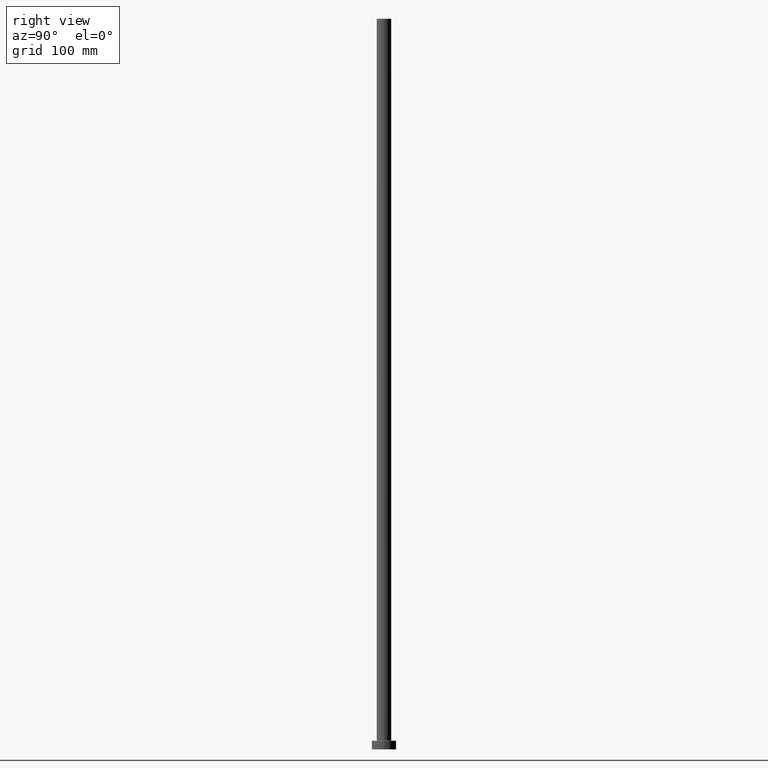
[diagram: clean part render]
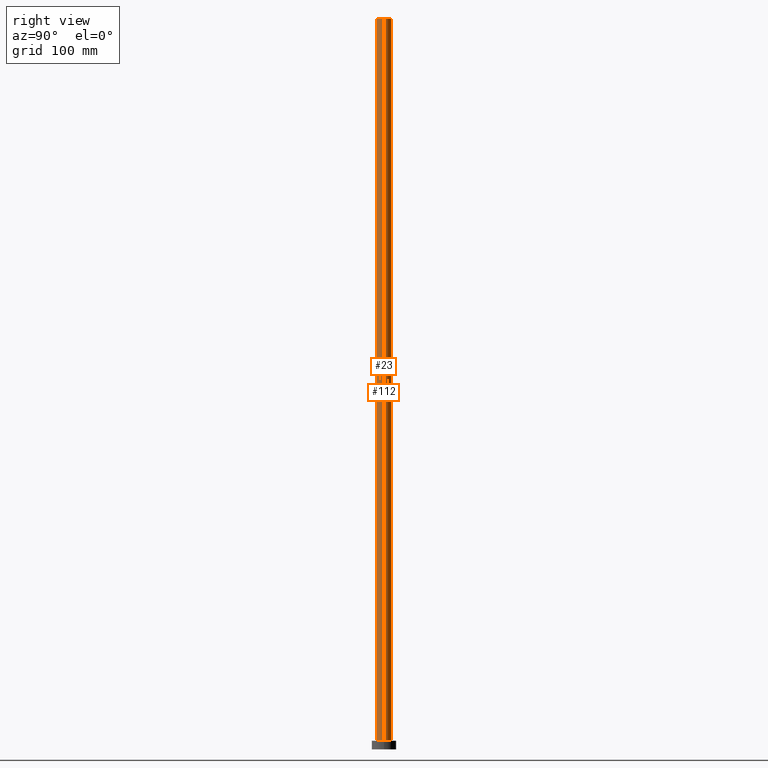
[diagram: same view with one multi-face feature highlighted, each face labeled with its STEP entity id]
A machine part, right view. The highlighted faces form ONE feature: a constant-radius fillet chain: 2 tangent blend faces with common blend radius 6 mm. The faces share edges in the B-rep.
Their STEP definitions:
[1] entity #112 (Cylinder):
#2 = VERTEX_POINT ( 'NONE', #265 ) ;
#47 = VECTOR ( 'NONE', #137, 1000.000000000000000 ) ;
#56 = ORIENTED_EDGE ( 'NONE', *, *, #376, .T. ) ;
#64 = AXIS2_PLACEMENT_3D ( 'NONE', #256, #151, #220 ) ;
#67 = DIRECTION ( 'NONE',  ( -1.000000000000000000, 0.000000000000000000, 0.000000000000000000 ) ) ;
#71 = CARTESIAN_POINT ( 'NONE',  ( 0.000000000000000000, 0.000000000000000000, 600.0000000000000000 ) ) ;
#112 = ADVANCED_FACE ( 'NONE', ( #239 ), #348, .T. ) ;
#114 = CARTESIAN_POINT ( 'NONE',  ( 6.000000000000000888, 7.347880794884120722E-16, 7.499999999999951150 ) ) ;
#137 = DIRECTION ( 'NONE',  ( -0.000000000000000000, -0.000000000000000000, -1.000000000000000000 ) ) ;
#151 = DIRECTION ( 'NONE',  ( 0.000000000000000000, 0.000000000000000000, 1.000000000000000000 ) ) ;
#154 = LINE ( 'NONE', #327, #434 ) ;
#181 = ORIENTED_EDGE ( 'NONE', *, *, #205, .F. ) ;
#184 = CARTESIAN_POINT ( 'NONE',  ( -6.000000000000000888, 0.000000000000000000, 600.0000000000000000 ) ) ;
#192 = EDGE_LOOP ( 'NONE', ( #284, #56, #371, #181 ) ) ;
#205 = EDGE_CURVE ( 'NONE', #364, #2, #451, .T. ) ;
#215 = DIRECTION ( 'NONE',  ( -0.000000000000000000, -0.000000000000000000, -1.000000000000000000 ) ) ;
#218 = VERTEX_POINT ( 'NONE', #114 ) ;
#220 = DIRECTION ( 'NONE',  ( 1.000000000000000000, 0.000000000000000000, 0.000000000000000000 ) ) ;
#239 = FACE_OUTER_BOUND ( 'NONE', #192, .T. ) ;
#252 = DIRECTION ( 'NONE',  ( 0.000000000000000000, 0.000000000000000000, 1.000000000000000000 ) ) ;
#255 = VERTEX_POINT ( 'NONE', #331 ) ;
#256 = CARTESIAN_POINT ( 'NONE',  ( 0.000000000000000000, 0.000000000000000000, 7.499999999999951150 ) ) ;
#262 = EDGE_CURVE ( 'NONE', #255, #364, #372, .T. ) ;
#265 = CARTESIAN_POINT ( 'NONE',  ( -6.000000000000000888, 0.000000000000000000, 7.499999999999951150 ) ) ;
#267 = CIRCLE ( 'NONE', #64, 6.000000000000000888 ) ;
#284 = ORIENTED_EDGE ( 'NONE', *, *, #262, .F. ) ;
#327 = CARTESIAN_POINT ( 'NONE',  ( 6.000000000000000888, 7.347880794884120722E-16, 600.0000000000000000 ) ) ;
#331 = CARTESIAN_POINT ( 'NONE',  ( 6.000000000000000888, 7.347880794884120722E-16, 600.0000000000000000 ) ) ;
#348 = CYLINDRICAL_SURFACE ( 'NONE', #365, 6.000000000000000888 ) ;
#364 = VERTEX_POINT ( 'NONE', #184 ) ;
#365 = AXIS2_PLACEMENT_3D ( 'NONE', #382, #419, #67 ) ;
#371 = ORIENTED_EDGE ( 'NONE', *, *, #400, .T. ) ;
#372 = CIRCLE ( 'NONE', #384, 6.000000000000000888 ) ;
#376 = EDGE_CURVE ( 'NONE', #255, #218, #154, .T. ) ;
#382 = CARTESIAN_POINT ( 'NONE',  ( 0.000000000000000000, 0.000000000000000000, 600.0000000000000000 ) ) ;
#384 = AXIS2_PLACEMENT_3D ( 'NONE', #71, #252, #426 ) ;
#387 = CARTESIAN_POINT ( 'NONE',  ( -6.000000000000000888, 0.000000000000000000, 600.0000000000000000 ) ) ;
#400 = EDGE_CURVE ( 'NONE', #218, #2, #267, .T. ) ;
#419 = DIRECTION ( 'NONE',  ( -0.000000000000000000, -0.000000000000000000, -1.000000000000000000 ) ) ;
#426 = DIRECTION ( 'NONE',  ( 1.000000000000000000, 0.000000000000000000, 0.000000000000000000 ) ) ;
#434 = VECTOR ( 'NONE', #215, 1000.000000000000000 ) ;
#451 = LINE ( 'NONE', #387, #47 ) ;
[2] entity #23 (Cylinder):
#2 = VERTEX_POINT ( 'NONE', #265 ) ;
#18 = CARTESIAN_POINT ( 'NONE',  ( 0.000000000000000000, 0.000000000000000000, 600.0000000000000000 ) ) ;
#23 = ADVANCED_FACE ( 'NONE', ( #157 ), #131, .T. ) ;
#37 = AXIS2_PLACEMENT_3D ( 'NONE', #122, #435, #431 ) ;
#47 = VECTOR ( 'NONE', #137, 1000.000000000000000 ) ;
#114 = CARTESIAN_POINT ( 'NONE',  ( 6.000000000000000888, 7.347880794884120722E-16, 7.499999999999951150 ) ) ;
#122 = CARTESIAN_POINT ( 'NONE',  ( 0.000000000000000000, 0.000000000000000000, 7.499999999999951150 ) ) ;
#129 = EDGE_CURVE ( 'NONE', #364, #255, #458, .T. ) ;
#131 = CYLINDRICAL_SURFACE ( 'NONE', #179, 6.000000000000000888 ) ;
#137 = DIRECTION ( 'NONE',  ( -0.000000000000000000, -0.000000000000000000, -1.000000000000000000 ) ) ;
#154 = LINE ( 'NONE', #327, #434 ) ;
#157 = FACE_OUTER_BOUND ( 'NONE', #235, .T. ) ;
#165 = ORIENTED_EDGE ( 'NONE', *, *, #205, .T. ) ;
#179 = AXIS2_PLACEMENT_3D ( 'NONE', #18, #341, #199 ) ;
#184 = CARTESIAN_POINT ( 'NONE',  ( -6.000000000000000888, 0.000000000000000000, 600.0000000000000000 ) ) ;
#199 = DIRECTION ( 'NONE',  ( -1.000000000000000000, 0.000000000000000000, 0.000000000000000000 ) ) ;
#205 = EDGE_CURVE ( 'NONE', #364, #2, #451, .T. ) ;
#215 = DIRECTION ( 'NONE',  ( -0.000000000000000000, -0.000000000000000000, -1.000000000000000000 ) ) ;
#218 = VERTEX_POINT ( 'NONE', #114 ) ;
#235 = EDGE_LOOP ( 'NONE', ( #436, #367, #165, #257 ) ) ;
#245 = EDGE_CURVE ( 'NONE', #2, #218, #320, .T. ) ;
#255 = VERTEX_POINT ( 'NONE', #331 ) ;
#257 = ORIENTED_EDGE ( 'NONE', *, *, #245, .T. ) ;
#265 = CARTESIAN_POINT ( 'NONE',  ( -6.000000000000000888, 0.000000000000000000, 7.499999999999951150 ) ) ;
#310 = DIRECTION ( 'NONE',  ( 0.000000000000000000, 0.000000000000000000, 1.000000000000000000 ) ) ;
#311 = CARTESIAN_POINT ( 'NONE',  ( 0.000000000000000000, 0.000000000000000000, 600.0000000000000000 ) ) ;
#320 = CIRCLE ( 'NONE', #37, 6.000000000000000888 ) ;
#327 = CARTESIAN_POINT ( 'NONE',  ( 6.000000000000000888, 7.347880794884120722E-16, 600.0000000000000000 ) ) ;
#331 = CARTESIAN_POINT ( 'NONE',  ( 6.000000000000000888, 7.347880794884120722E-16, 600.0000000000000000 ) ) ;
#341 = DIRECTION ( 'NONE',  ( -0.000000000000000000, -0.000000000000000000, -1.000000000000000000 ) ) ;
#351 = AXIS2_PLACEMENT_3D ( 'NONE', #311, #310, #385 ) ;
#364 = VERTEX_POINT ( 'NONE', #184 ) ;
#367 = ORIENTED_EDGE ( 'NONE', *, *, #129, .F. ) ;
#376 = EDGE_CURVE ( 'NONE', #255, #218, #154, .T. ) ;
#385 = DIRECTION ( 'NONE',  ( 1.000000000000000000, 0.000000000000000000, 0.000000000000000000 ) ) ;
#387 = CARTESIAN_POINT ( 'NONE',  ( -6.000000000000000888, 0.000000000000000000, 600.0000000000000000 ) ) ;
#431 = DIRECTION ( 'NONE',  ( 1.000000000000000000, 0.000000000000000000, 0.000000000000000000 ) ) ;
#434 = VECTOR ( 'NONE', #215, 1000.000000000000000 ) ;
#435 = DIRECTION ( 'NONE',  ( 0.000000000000000000, 0.000000000000000000, 1.000000000000000000 ) ) ;
#436 = ORIENTED_EDGE ( 'NONE', *, *, #376, .F. ) ;
#451 = LINE ( 'NONE', #387, #47 ) ;
#458 = CIRCLE ( 'NONE', #351, 6.000000000000000888 ) ;